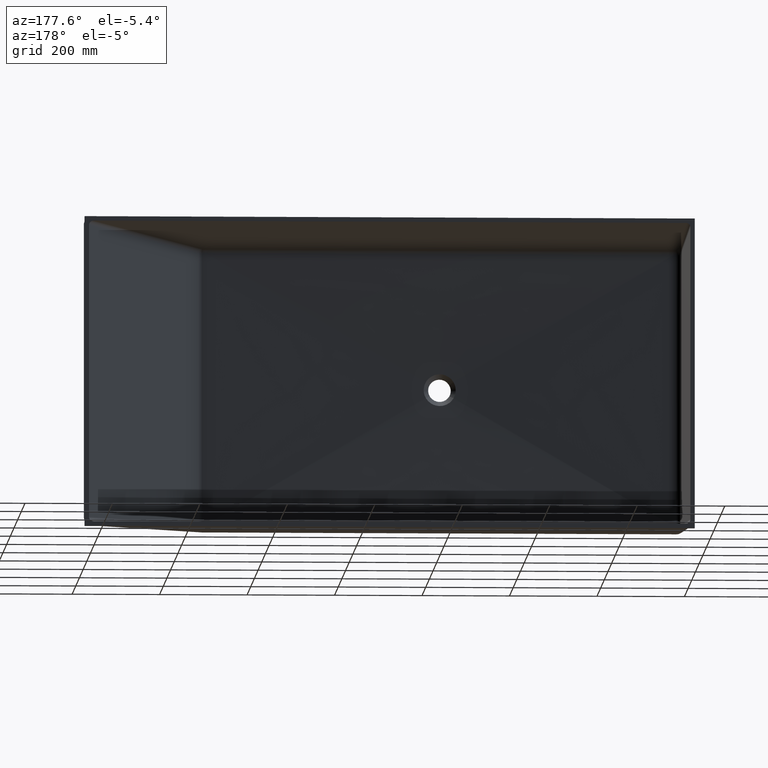
[diagram: clean part render]
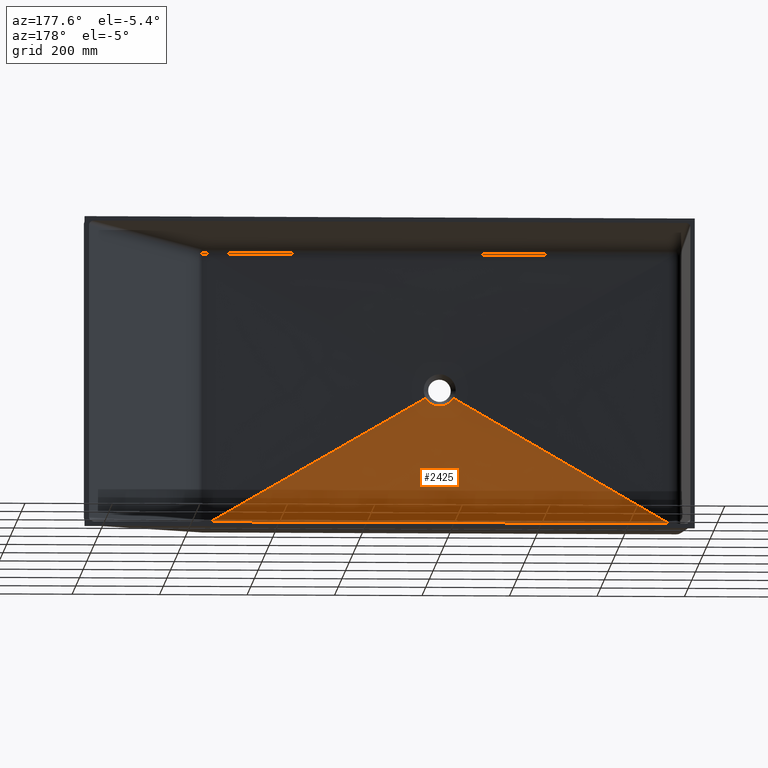
[diagram: same view with one face highlighted and labeled with its STEP entity id]
A machine part, auxiliary view. The second image highlights one B-rep face of the part: STEP entity #2425.
In plain terms, the highlighted face is a freeform B-spline surface patch.
Its self-contained STEP definition (entity closure, byte-faithful):
#22 = CARTESIAN_POINT ( 'NONE',  ( -12.46119368260252500, -434.6138319889536200, -34.26806348511322400 ) ) ;
#49 = CARTESIAN_POINT ( 'NONE',  ( -12.04395989786009800, -434.6113100263992800, -34.41444768614513800 ) ) ;
#78 = ORIENTED_EDGE ( 'NONE', *, *, #5514, .F. ) ;
#85 = CARTESIAN_POINT ( 'NONE',  ( -11.20733184638979900, -434.6064857819136500, -34.69124588032878600 ) ) ;
#123 = CARTESIAN_POINT ( 'NONE',  ( -533.7607856264130500, -423.3694040181032400, -310.5517298190039800 ) ) ;
#246 = DIRECTION ( 'NONE',  ( -0.8641813118520227400, -0.01965809685271037400, 0.5027963996229950500 ) ) ;
#252 = EDGE_CURVE ( 'NONE', #1632, #2219, #7512, .T. ) ;
#262 = CARTESIAN_POINT ( 'NONE',  ( 286.2365283902219100, -429.0000000000000000, -166.5376165179473000 ) ) ;
#266 = CARTESIAN_POINT ( 'NONE',  ( -10.78765090887599400, -434.6041804893484400, -34.82186335492850300 ) ) ;
#293 = CARTESIAN_POINT ( 'NONE',  ( -25.40927507780514500, -434.7227906635949400, -26.31617562609824300 ) ) ;
#296 = CARTESIAN_POINT ( 'NONE',  ( -8.682760508903365700, -434.5932338262030600, -35.43567839087528900 ) ) ;
#335 = CARTESIAN_POINT ( 'NONE',  ( -6.977580235627764100, -434.5863332028259800, -35.80398224478477700 ) ) ;
#376 = CARTESIAN_POINT ( 'NONE',  ( -3.525884178374745700, -434.5769469013944200, -36.29851160580632600 ) ) ;
#443 = CARTESIAN_POINT ( 'NONE',  ( -1.779157402856978300, -434.5744780559303400, -36.42501543554661200 ) ) ;
#480 = CARTESIAN_POINT ( 'NONE',  ( 1.757619351721097600, -434.5744581745696000, -36.42604526279923500 ) ) ;
#508 = CARTESIAN_POINT ( 'NONE',  ( 3.506638107210762200, -434.5769081935055700, -36.30053357939499400 ) ) ;
#539 = CARTESIAN_POINT ( 'NONE',  ( 6.101232379344614800, -434.5839434116734900, -35.92990066270651500 ) ) ;
#783 = CARTESIAN_POINT ( 'NONE',  ( 6.961317690272219100, -434.5868407469716300, -35.77584795457978100 ) ) ;
#819 = CARTESIAN_POINT ( 'NONE',  ( 8.671961217941166900, -434.5936685346455300, -35.40636297597951200 ) ) ;
#846 = CARTESIAN_POINT ( 'NONE',  ( 9.522337521678897700, -434.5975990630572600, -35.19096088769890700 ) ) ;
#880 = CARTESIAN_POINT ( 'NONE',  ( 10.79103741959735700, -434.6041986312442300, -34.82081812418472600 ) ) ;
#1060 = CARTESIAN_POINT ( 'NONE',  ( 11.21333720684453500, -434.6065191758268600, -34.68934796101296300 ) ) ;
#1092 = CARTESIAN_POINT ( 'NONE',  ( 12.04964828058709400, -434.6113440795882100, -34.41247548091688200 ) ) ;
#1120 = CARTESIAN_POINT ( 'NONE',  ( 12.46438655720330700, -434.6138519340586900, -34.26689456992956200 ) ) ;
#1177 = EDGE_CURVE ( 'NONE', #9655, #4001, #6536, .T. ) ;
#1194 = CARTESIAN_POINT ( 'NONE',  ( 13.69664186024449000, -434.6216231242231100, -33.80952784427609700 ) ) ;
#1226 = CARTESIAN_POINT ( 'NONE',  ( 14.50432319432835900, -434.6271456165702600, -33.47655326352649000 ) ) ;
#1257 = CARTESIAN_POINT ( 'NONE',  ( 16.09064746644529700, -434.6387047018587900, -32.75597053735599200 ) ) ;
#1293 = CARTESIAN_POINT ( 'NONE',  ( 16.86958792932784900, -434.6447397324447500, -32.36828591560289000 ) ) ;
#1325 = CARTESIAN_POINT ( 'NONE',  ( 18.39928847567581000, -434.6571710319865400, -31.53807035143199000 ) ) ;
#1415 = ORIENTED_EDGE ( 'NONE', *, *, #8718, .F. ) ;
#1435 = CARTESIAN_POINT ( 'NONE',  ( -286.2365283902219100, -429.0000000000000000, -166.5376165179473000 ) ) ;
#1466 = DIRECTION ( 'NONE',  ( 0.8641813118520227400, -0.01965809685271037400, 0.5027963996229950500 ) ) ;
#1506 = FACE_OUTER_BOUND ( 'NONE', #9230, .T. ) ;
#1545 = CARTESIAN_POINT ( 'NONE',  ( 19.15002705929865500, -434.6635691489228200, -31.09555237574572200 ) ) ;
#1573 = CARTESIAN_POINT ( 'NONE',  ( 20.62292687437359000, -434.6765901450460800, -30.15486575868534300 ) ) ;
#1593 = CARTESIAN_POINT ( 'NONE',  ( 21.34522534179033600, -434.6832114028536600, -29.65660453747216300 ) ) ;
#1632 = VERTEX_POINT ( 'NONE', #123 ) ;
#1678 = B_SPLINE_SURFACE_WITH_KNOTS ( 'NONE', 3, 1, ( 
 ( #4613, #4645 ),
 ( #4713, #4580 ),
 ( #4558, #4547 ),
 ( #4521, #4498 ),
 ( #4488, #4466 ),
 ( #4429, #4407 ),
 ( #4377, #4339 ),
 ( #4329, #4311 ),
 ( #4285, #4260 ),
 ( #4244, #4235 ),
 ( #4196, #4182 ),
 ( #4169, #4159 ),
 ( #4148, #4139 ),
 ( #4116, #4103 ),
 ( #4093, #4076 ),
 ( #4031, #4010 ),
 ( #3994, #3971 ),
 ( #3957, #3932 ),
 ( #3915, #3884 ),
 ( #3857, #3795 ),
 ( #3788, #3765 ),
 ( #3731, #3725 ),
 ( #3690, #3666 ),
 ( #3658, #3634 ),
 ( #3623, #3593 ),
 ( #3568, #3546 ),
 ( #3535, #3514 ),
 ( #3496, #3480 ),
 ( #3467, #3455 ),
 ( #3446, #3419 ) ),
 .UNSPECIFIED., .F., .F., .F.,
 ( 4, 2, 2, 2, 2, 2, 2, 2, 2, 2, 2, 2, 2, 2, 4 ),
 ( 2, 2 ),
 ( 0.0000000000000000000, 0.1249999999999998900, 0.1874999999999998300, 0.2499999999999997800, 0.3124999999999998300, 0.3749999999999998900, 0.4374999999999999400, 0.5000000000000000000, 0.5625000000000000000, 0.6250000000000001100, 0.6875000000000001100, 0.7500000000000002200, 0.8125000000000002200, 0.8750000000000003300, 1.000000000000000000 ),
 ( 0.0000000000000000000, 1.000000000000000000 ),
 .UNSPECIFIED. ) ;
#1695 = CARTESIAN_POINT ( 'NONE',  ( 534.0965935055091900, -423.3541531858632500, -310.9421604996377900 ) ) ;
#1701 = LINE ( 'NONE', #262, #10263 ) ;
#1757 = CARTESIAN_POINT ( 'NONE',  ( 22.75999147685486100, -434.6965478244948100, -28.60297717239204500 ) ) ;
#1793 = CARTESIAN_POINT ( 'NONE',  ( 23.44377014557517200, -434.7031810573747600, -28.05410957685457900 ) ) ;
#1830 = CARTESIAN_POINT ( 'NONE',  ( 24.76617605916228000, -434.7162799571330500, -26.91283354103757100 ) ) ;
#1868 = CARTESIAN_POINT ( 'NONE',  ( 25.40469621505980100, -434.7227441361438300, -26.32049296937682600 ) ) ;
#1938 = CARTESIAN_POINT ( 'NONE',  ( 26.63694483426223800, -434.7354332663287600, -25.09279633669474700 ) ) ;
#1978 = CARTESIAN_POINT ( 'NONE',  ( 27.23066335759082400, -434.7416572953691800, -24.45744998494500800 ) ) ;
#2013 = CARTESIAN_POINT ( 'NONE',  ( 28.37318323894900700, -434.7538188692709000, -23.14346789259078100 ) ) ;
#2041 = CARTESIAN_POINT ( 'NONE',  ( 28.92217185093414100, -434.7597586263069000, -22.46453527438551800 ) ) ;
#2076 = CARTESIAN_POINT ( 'NONE',  ( 29.71069256767291800, -434.7684248069203400, -21.41397263864560700 ) ) ;
#2219 = VERTEX_POINT ( 'NONE', #5973 ) ;
#2282 = CARTESIAN_POINT ( 'NONE',  ( 29.96799156473743500, -434.7712765438610600, -21.05794953309505500 ) ) ;
#2339 = CARTESIAN_POINT ( 'NONE',  ( 30.47080911399301700, -434.7768985582664000, -20.33493825235711200 ) ) ;
#2376 = CARTESIAN_POINT ( 'NONE',  ( 30.71654322698189100, -434.7796715040121300, -19.96750925472373000 ) ) ;
#2425 = ADVANCED_FACE ( 'NONE', ( #1506 ), #1678, .F. ) ;
#2537 = B_SPLINE_CURVE_WITH_KNOTS ( 'NONE', 3,
 ( #5705, #5982, #5668, #5661, #5625 ),
 .UNSPECIFIED., .F., .F.,
 ( 4, 1, 4 ),
 ( 0.006017056074712189400, 0.5401136501797584300, 1.074210244284804700 ),
 .UNSPECIFIED. ) ;
#2548 = CARTESIAN_POINT ( 'NONE',  ( 31.19203236278994500, -434.7850900617976300, -19.22784280455765700 ) ) ;
#2589 = CARTESIAN_POINT ( 'NONE',  ( 31.42229541387174400, -434.7877456911061200, -18.85498436713761800 ) ) ;
#2626 = CARTESIAN_POINT ( 'NONE',  ( 31.67481968886571400, -434.7906814926254800, -18.42898599968169300 ) ) ;
#2667 = CARTESIAN_POINT ( 'NONE',  ( 31.66521323882003000, -434.7905693318697900, -18.44524623642659100 ) ) ;
#2764 = CARTESIAN_POINT ( 'NONE',  ( -16.87700671171725700, -434.6447982019684600, -32.36447482298079600 ) ) ;
#3419 = CARTESIAN_POINT ( 'NONE',  ( 22.47305678044380200, -435.0000000000000000, -13.07523303589458400 ) ) ;
#3446 = CARTESIAN_POINT ( 'NONE',  ( 550.0000000000000000, -423.0000000000000000, -320.0000000000000000 ) ) ;
#3455 = CARTESIAN_POINT ( 'NONE',  ( 21.53126045213228700, -435.0000000000000600, -14.69394547518000000 ) ) ;
#3467 = CARTESIAN_POINT ( 'NONE',  ( 504.1666666666668600, -422.9999999999999400, -319.9999999999999400 ) ) ;
#3480 = CARTESIAN_POINT ( 'NONE',  ( 20.35324425944731900, -435.0000000000000600, -16.31443209533705400 ) ) ;
#3496 = CARTESIAN_POINT ( 'NONE',  ( 458.3333333333336600, -422.9999999999999400, -319.9999999999998900 ) ) ;
#3514 = CARTESIAN_POINT ( 'NONE',  ( 18.19023653724158900, -435.0000000000000600, -18.60696392049825600 ) ) ;
#3535 = CARTESIAN_POINT ( 'NONE',  ( 389.5833333333337100, -422.9999999999999400, -319.9999999999998300 ) ) ;
#3546 = CARTESIAN_POINT ( 'NONE',  ( 17.40376523756670900, -435.0000000000000600, -19.34752461996536300 ) ) ;
#3568 = CARTESIAN_POINT ( 'NONE',  ( 366.6666666666670300, -422.9999999999999400, -319.9999999999998300 ) ) ;
#3593 = CARTESIAN_POINT ( 'NONE',  ( 15.70179363176895900, -435.0000000000000600, -20.75262465592825500 ) ) ;
#3623 = CARTESIAN_POINT ( 'NONE',  ( 320.8333333333336600, -422.9999999999998900, -319.9999999999998300 ) ) ;
#3634 = CARTESIAN_POINT ( 'NONE',  ( 14.78624980635663800, -435.0000000000000600, -21.41708314686529100 ) ) ;
#3658 = CARTESIAN_POINT ( 'NONE',  ( 297.9166666666669700, -422.9999999999998900, -319.9999999999998300 ) ) ;
#3666 = CARTESIAN_POINT ( 'NONE',  ( 12.83600753977992200, -435.0000000000000600, -22.63982209060919000 ) ) ;
#3690 = CARTESIAN_POINT ( 'NONE',  ( 252.0833333333336600, -422.9999999999999400, -319.9999999999998900 ) ) ;
#3722 = CARTESIAN_POINT ( 'NONE',  ( -21.34431616751438600, -434.6832038170694000, -29.65707446587381200 ) ) ;
#3725 = CARTESIAN_POINT ( 'NONE',  ( 11.80129827629860300, -435.0000000000000600, -23.19799905050773200 ) ) ;
#3731 = CARTESIAN_POINT ( 'NONE',  ( 229.1666666666669700, -422.9999999999998900, -319.9999999999998900 ) ) ;
#3751 = EDGE_CURVE ( 'NONE', #10033, #7972, #5220, .T. ) ;
#3765 = CARTESIAN_POINT ( 'NONE',  ( 9.631562217398769800, -435.0000000000000000, -24.17955355679468000 ) ) ;
#3788 = CARTESIAN_POINT ( 'NONE',  ( 183.3333333333336300, -422.9999999999998900, -319.9999999999998900 ) ) ;
#3795 = CARTESIAN_POINT ( 'NONE',  ( 8.496569480746314800, -434.9999999999998900, -24.60282113457703100 ) ) ;
#3857 = CARTESIAN_POINT ( 'NONE',  ( 160.4166666666670000, -422.9999999999998900, -319.9999999999998900 ) ) ;
#3884 = CARTESIAN_POINT ( 'NONE',  ( 6.153758291839061200, -435.0000000000000600, -25.29074454433403600 ) ) ;
#3915 = CARTESIAN_POINT ( 'NONE',  ( 114.5833333333336300, -422.9999999999998900, -319.9999999999998900 ) ) ;
#3932 = CARTESIAN_POINT ( 'NONE',  ( 4.946021307307763200, -435.0000000000000000, -25.55530689251893900 ) ) ;
#3957 = CARTESIAN_POINT ( 'NONE',  ( 91.66666666666692700, -422.9999999999999400, -319.9999999999999400 ) ) ;
#3971 = CARTESIAN_POINT ( 'NONE',  ( 2.492132842348288700, -435.0000000000000000, -25.90996161786537800 ) ) ;
#3994 = CARTESIAN_POINT ( 'NONE',  ( 45.83333333333357000, -422.9999999999999400, -319.9999999999999400 ) ) ;
#4001 = VERTEX_POINT ( 'NONE', #5927 ) ;
#4010 = CARTESIAN_POINT ( 'NONE',  ( 1.246099363747021700, -434.9999999999998900, -26.00000000000000000 ) ) ;
#4031 = CARTESIAN_POINT ( 'NONE',  ( 22.91666666666691700, -422.9999999999999400, -319.9999999999999400 ) ) ;
#4076 = CARTESIAN_POINT ( 'NONE',  ( -1.246099363747026800, -435.0000000000000000, -25.99999999999999600 ) ) ;
#4085 = CARTESIAN_POINT ( 'NONE',  ( 31.65559512475887900, -434.7904572899480500, -18.46149723174011500 ) ) ;
#4093 = CARTESIAN_POINT ( 'NONE',  ( -22.91666666666644400, -422.9999999999999400, -319.9999999999999400 ) ) ;
#4103 = CARTESIAN_POINT ( 'NONE',  ( -2.492132842348290000, -434.9999999999998300, -25.90996161786537000 ) ) ;
#4116 = CARTESIAN_POINT ( 'NONE',  ( -45.83333333333313000, -422.9999999999999400, -319.9999999999999400 ) ) ;
#4139 = CARTESIAN_POINT ( 'NONE',  ( -4.946021307307765000, -435.0000000000000000, -25.55530689251893500 ) ) ;
#4148 = CARTESIAN_POINT ( 'NONE',  ( -91.66666666666650100, -422.9999999999999400, -319.9999999999999400 ) ) ;
#4159 = CARTESIAN_POINT ( 'NONE',  ( -6.153758291839069200, -434.9999999999999400, -25.29074454433403600 ) ) ;
#4169 = CARTESIAN_POINT ( 'NONE',  ( -114.5833333333332000, -422.9999999999999400, -319.9999999999999400 ) ) ;
#4182 = CARTESIAN_POINT ( 'NONE',  ( -8.496569480746325500, -435.0000000000000600, -24.60282113457703400 ) ) ;
#4196 = CARTESIAN_POINT ( 'NONE',  ( -160.4166666666665700, -422.9999999999999400, -319.9999999999999400 ) ) ;
#4235 = CARTESIAN_POINT ( 'NONE',  ( -9.631562217398766300, -434.9999999999998300, -24.17955355679467600 ) ) ;
#4244 = CARTESIAN_POINT ( 'NONE',  ( -183.3333333333332300, -422.9999999999999400, -319.9999999999999400 ) ) ;
#4260 = CARTESIAN_POINT ( 'NONE',  ( -11.80129827629859900, -434.9999999999998900, -23.19799905050772200 ) ) ;
#4285 = CARTESIAN_POINT ( 'NONE',  ( -229.1666666666666300, -422.9999999999999400, -319.9999999999999400 ) ) ;
#4311 = CARTESIAN_POINT ( 'NONE',  ( -12.83600753977992200, -435.0000000000000600, -22.63982209060918600 ) ) ;
#4329 = CARTESIAN_POINT ( 'NONE',  ( -252.0833333333333100, -422.9999999999999400, -319.9999999999999400 ) ) ;
#4339 = CARTESIAN_POINT ( 'NONE',  ( -14.78624980635664200, -435.0000000000000600, -21.41708314686528800 ) ) ;
#4377 = CARTESIAN_POINT ( 'NONE',  ( -297.9166666666666900, -422.9999999999998900, -319.9999999999999400 ) ) ;
#4407 = CARTESIAN_POINT ( 'NONE',  ( -15.70179363176896300, -435.0000000000002300, -20.75262465592825500 ) ) ;
#4429 = CARTESIAN_POINT ( 'NONE',  ( -320.8333333333333700, -422.9999999999998900, -319.9999999999999400 ) ) ;
#4466 = CARTESIAN_POINT ( 'NONE',  ( -17.40376523756670900, -435.0000000000001100, -19.34752461996537000 ) ) ;
#4488 = CARTESIAN_POINT ( 'NONE',  ( -366.6666666666666300, -422.9999999999998900, -319.9999999999999400 ) ) ;
#4498 = CARTESIAN_POINT ( 'NONE',  ( -18.19023653724158900, -434.9999999999999400, -18.60696392049824200 ) ) ;
#4521 = CARTESIAN_POINT ( 'NONE',  ( -389.5833333333333100, -422.9999999999999400, -320.0000000000000000 ) ) ;
#4547 = CARTESIAN_POINT ( 'NONE',  ( -20.35324425944731500, -435.0000000000000600, -16.31443209533704700 ) ) ;
#4558 = CARTESIAN_POINT ( 'NONE',  ( -458.3333333333333100, -423.0000000000000000, -320.0000000000000000 ) ) ;
#4580 = CARTESIAN_POINT ( 'NONE',  ( -21.53126045213229000, -435.0000000000000600, -14.69394547517999400 ) ) ;
#4613 = CARTESIAN_POINT ( 'NONE',  ( -550.0000000000000000, -423.0000000000000000, -320.0000000000000000 ) ) ;
#4645 = CARTESIAN_POINT ( 'NONE',  ( -22.47305678044380900, -435.0000000000000000, -13.07523303589457200 ) ) ;
#4713 = CARTESIAN_POINT ( 'NONE',  ( -504.1666666666666300, -423.0000000000000000, -320.0000000000000000 ) ) ;
#4774 = CARTESIAN_POINT ( 'NONE',  ( -22.75286986984533800, -434.6964797111008400, -28.60848720315351200 ) ) ;
#5067 = CARTESIAN_POINT ( 'NONE',  ( -20.62474845370443800, -434.6766070425616700, -30.15357854645552700 ) ) ;
#5099 = CARTESIAN_POINT ( 'NONE',  ( -31.67529399715031200, -434.7906821606582100, -18.42821129493677600 ) ) ;
#5220 = B_SPLINE_CURVE_WITH_KNOTS ( 'NONE', 3,
 ( #2626, #2667, #4085, #2589, #2548, #2376, #2339, #2282, #2076, #2041, #2013, #1978, #1938, #1868, #1830, #1793, #1757, #1593, #1573, #1545, #1325, #1293, #1257, #1226, #1194, #1120, #1092, #1060, #880, #846, #819, #783, #539, #508, #480, #443, #376, #335, #296, #266, #85, #49, #22, #9607, #8367, #8315, #2764, #7776, #5260, #5067, #3722, #4774, #9754, #10075, #293, #9837, #9794, #9708, #9538, #9496, #9462, #9430, #9402, #9149, #9139, #9103 ),
 .UNSPECIFIED., .F., .F.,
 ( 4, 2, 2, 2, 2, 2, 2, 2, 2, 2, 2, 2, 2, 2, 2, 2, 2, 2, 2, 2, 2, 2, 2, 2, 2, 2, 2, 2, 2, 2, 2, 2, 4 ),
 ( 0.0000000000000000000, 0.0007411729235636462500, 0.01795652723428238200, 0.03517188154500111600, 0.05238723585571984600, 0.08681794447715732200, 0.1212486530985947800, 0.1556793617200322400, 0.1901100703414697100, 0.2245407789629071900, 0.2589714875843446300, 0.2934021962057821200, 0.3278329048272196100, 0.3450482591379383500, 0.3622636134486570400, 0.3966943220700945300, 0.4311250306915320200, 0.4999864479344069400, 0.5688478651772819200, 0.6377092824201567900, 0.6549246367308755300, 0.6721399910415942800, 0.7065706996630317600, 0.7410014082844692500, 0.7754321169059066300, 0.8098628255273441200, 0.8442935341487816100, 0.8787242427702191000, 0.9131549513916565900, 0.9475856600130939700, 0.9820163686345314600, 0.9992317229452502000, 1.000000000000000000 ),
 .UNSPECIFIED. ) ;
#5260 = CARTESIAN_POINT ( 'NONE',  ( -19.15559829436125800, -434.6636176080353400, -31.09211745435669300 ) ) ;
#5486 = ORIENTED_EDGE ( 'NONE', *, *, #252, .F. ) ;
#5514 = EDGE_CURVE ( 'NONE', #4001, #10033, #1701, .T. ) ;
#5564 = VECTOR ( 'NONE', #1466, 1000.000000000000100 ) ;
#5572 = EDGE_CURVE ( 'NONE', #1632, #7972, #9743, .T. ) ;
#5625 = CARTESIAN_POINT ( 'NONE',  ( 534.0965935055091900, -423.3541531858632500, -310.9421604996377900 ) ) ;
#5661 = CARTESIAN_POINT ( 'NONE',  ( 356.0643957820310600, -423.3612998052273600, -310.9501310011507400 ) ) ;
#5668 = CARTESIAN_POINT ( 'NONE',  ( 1.639245961193580600E-007, -423.3767337258362300, -310.9680474877816300 ) ) ;
#5705 = CARTESIAN_POINT ( 'NONE',  ( -534.0965935055230600, -423.3541531858632000, -310.9421604996376200 ) ) ;
#5743 = ORIENTED_EDGE ( 'NONE', *, *, #5572, .T. ) ;
#5927 = CARTESIAN_POINT ( 'NONE',  ( 533.7607856264130500, -423.3694040181032400, -310.5517298190039800 ) ) ;
#5930 = CARTESIAN_POINT ( 'NONE',  ( -534.0385009323421200, -423.3606718627519900, -310.7751890281948000 ) ) ;
#5973 = CARTESIAN_POINT ( 'NONE',  ( -534.0965935055230600, -423.3541531858632000, -310.9421604996376200 ) ) ;
#5982 = CARTESIAN_POINT ( 'NONE',  ( -356.0643957923676900, -423.3612998052269600, -310.9501310011504000 ) ) ;
#6036 = CARTESIAN_POINT ( 'NONE',  ( -534.0966442286954800, -423.3559244439729800, -310.8967751366366200 ) ) ;
#6044 = ORIENTED_EDGE ( 'NONE', *, *, #3751, .F. ) ;
#6299 = ORIENTED_EDGE ( 'NONE', *, *, #1177, .F. ) ;
#6536 = B_SPLINE_CURVE_WITH_KNOTS ( 'NONE', 3,
 ( #7100, #6906, #7562, #6766, #7538, #7543, #6617, #7234 ),
 .UNSPECIFIED., .F., .F.,
 ( 4, 2, 2, 4 ),
 ( 0.0000000000000000000, 0.0001340846341043073400, 0.0002681692682086146700, 0.0005363385364169946200 ),
 .UNSPECIFIED. ) ;
#6617 = CARTESIAN_POINT ( 'NONE',  ( 533.8382887829327500, -423.3676410031728800, -310.5968225645606800 ) ) ;
#6638 = CARTESIAN_POINT ( 'NONE',  ( 31.67481968886571400, -434.7906814926254800, -18.42898599968169300 ) ) ;
#6766 = CARTESIAN_POINT ( 'NONE',  ( 534.0385009323404100, -423.3606718627521600, -310.7751890281934900 ) ) ;
#6906 = CARTESIAN_POINT ( 'NONE',  ( 534.0966442286813800, -423.3559244439720700, -310.8967751366382700 ) ) ;
#7053 = CARTESIAN_POINT ( 'NONE',  ( -533.9133252174488000, -423.3656731287621300, -310.6471680668517500 ) ) ;
#7100 = CARTESIAN_POINT ( 'NONE',  ( 534.0965935055091900, -423.3541531858632500, -310.9421604996377900 ) ) ;
#7234 = CARTESIAN_POINT ( 'NONE',  ( 533.7607856264130500, -423.3694040181032400, -310.5517298190039800 ) ) ;
#7501 = CARTESIAN_POINT ( 'NONE',  ( -533.8382887829226300, -423.3676410031578100, -310.5968225645820600 ) ) ;
#7512 = B_SPLINE_CURVE_WITH_KNOTS ( 'NONE', 3,
 ( #7585, #7501, #7053, #7609, #5930, #8384, #6036, #8299 ),
 .UNSPECIFIED., .F., .F.,
 ( 4, 2, 2, 4 ),
 ( 0.0000000000000000000, 0.0002687770897962138000, 0.0004031656346943791200, 0.0005375541795925443800 ),
 .UNSPECIFIED. ) ;
#7538 = CARTESIAN_POINT ( 'NONE',  ( 534.0090152650597000, -423.3620307221138400, -310.7404005021873000 ) ) ;
#7543 = CARTESIAN_POINT ( 'NONE',  ( 533.9133252174451600, -423.3656731287619600, -310.6471680668518000 ) ) ;
#7562 = CARTESIAN_POINT ( 'NONE',  ( 534.0824123019632500, -423.3576367315096700, -310.8529148209056500 ) ) ;
#7585 = CARTESIAN_POINT ( 'NONE',  ( -533.7607856264130500, -423.3694040181032400, -310.5517298190039800 ) ) ;
#7609 = CARTESIAN_POINT ( 'NONE',  ( -534.0090152650631100, -423.3620307221141800, -310.7404005021867300 ) ) ;
#7776 = CARTESIAN_POINT ( 'NONE',  ( -18.40601577085654100, -434.6572275434494900, -31.53420193161552000 ) ) ;
#7972 = VERTEX_POINT ( 'NONE', #5099 ) ;
#8299 = CARTESIAN_POINT ( 'NONE',  ( -534.0965935055230600, -423.3541531858632000, -310.9421604996376200 ) ) ;
#8315 = CARTESIAN_POINT ( 'NONE',  ( -16.09760452160965400, -434.6387571012450100, -32.75265032530241900 ) ) ;
#8367 = CARTESIAN_POINT ( 'NONE',  ( -14.50854541565449700, -434.6271746850345600, -33.47479420969993700 ) ) ;
#8384 = CARTESIAN_POINT ( 'NONE',  ( -534.0824123019652900, -423.3576367315095000, -310.8529148209079800 ) ) ;
#8718 = EDGE_CURVE ( 'NONE', #2219, #9655, #2537, .T. ) ;
#9103 = CARTESIAN_POINT ( 'NONE',  ( -31.67529399715031200, -434.7906821606582100, -18.42821129493677600 ) ) ;
#9139 = CARTESIAN_POINT ( 'NONE',  ( -31.66576102089681300, -434.7905757110526100, -18.44432033454903300 ) ) ;
#9149 = CARTESIAN_POINT ( 'NONE',  ( -31.65575601058020900, -434.7904591534841600, -18.46122605379772700 ) ) ;
#9230 = EDGE_LOOP ( 'NONE', ( #1415, #5486, #5743, #6044, #78, #6299 ) ) ;
#9402 = CARTESIAN_POINT ( 'NONE',  ( -31.42126800297699400, -434.7877337861762600, -18.85671318384500600 ) ) ;
#9430 = CARTESIAN_POINT ( 'NONE',  ( -31.18971447916882100, -434.7850703093896500, -19.23159980236071600 ) ) ;
#9462 = CARTESIAN_POINT ( 'NONE',  ( -30.47402320430800100, -434.7768944875257400, -20.34446544322607100 ) ) ;
#9496 = CARTESIAN_POINT ( 'NONE',  ( -29.97338501347114500, -434.7713121402569500, -21.06384375863051200 ) ) ;
#9538 = CARTESIAN_POINT ( 'NONE',  ( -28.92497763894212400, -434.7597892332444800, -22.46093483413995200 ) ) ;
#9607 = CARTESIAN_POINT ( 'NONE',  ( -13.69899093462249200, -434.6216375594841000, -33.80868805681027600 ) ) ;
#9655 = VERTEX_POINT ( 'NONE', #1695 ) ;
#9708 = CARTESIAN_POINT ( 'NONE',  ( -28.37744996466458900, -434.7538648504892600, -23.13828524448056700 ) ) ;
#9743 = LINE ( 'NONE', #1435, #5564 ) ;
#9754 = CARTESIAN_POINT ( 'NONE',  ( -23.44318931368452400, -434.7031748507453700, -28.05472889747941800 ) ) ;
#9794 = CARTESIAN_POINT ( 'NONE',  ( -27.23630538129444300, -434.7417167940291700, -24.45123446539259100 ) ) ;
#9837 = CARTESIAN_POINT ( 'NONE',  ( -26.64270761563991000, -434.7354932362127900, -25.08680817947450200 ) ) ;
#10033 = VERTEX_POINT ( 'NONE', #6638 ) ;
#10075 = CARTESIAN_POINT ( 'NONE',  ( -24.76895352422943800, -434.7163079224632700, -26.91031838149642800 ) ) ;
#10263 = VECTOR ( 'NONE', #246, 1000.000000000000100 ) ;